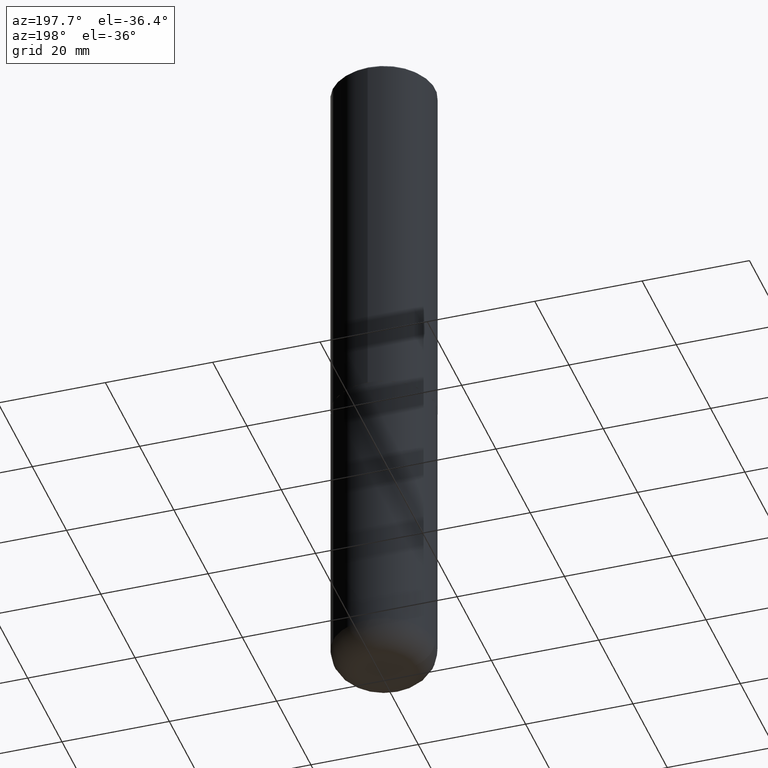
[diagram: clean part render]
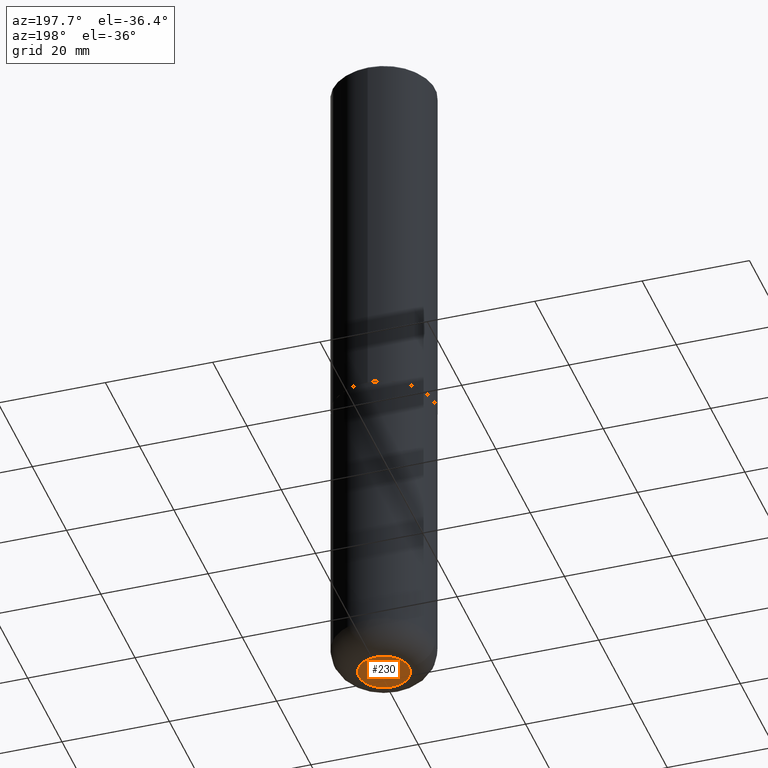
[diagram: same view with one face highlighted and labeled with its STEP entity id]
A machine part, auxiliary view. The second image highlights one B-rep face of the part: STEP entity #230.
In plain terms, the highlighted planar face has unit normal (0, -0, -1).
Its self-contained STEP definition (entity closure, byte-faithful):
#4 = CIRCLE ( 'NONE', #342, 0.1850000000000000810 ) ;
#31 = EDGE_LOOP ( 'NONE', ( #197, #61 ) ) ;
#35 = CARTESIAN_POINT ( 'NONE',  ( 1.222734403092568523E-28, -1.745740669421572989E-14, -5.000000000000000000 ) ) ;
#61 = ORIENTED_EDGE ( 'NONE', *, *, #100, .F. ) ;
#100 = EDGE_CURVE ( 'NONE', #293, #254, #129, .T. ) ;
#129 = CIRCLE ( 'NONE', #190, 0.1850000000000000810 ) ;
#147 = FACE_OUTER_BOUND ( 'NONE', #31, .T. ) ;
#153 = AXIS2_PLACEMENT_3D ( 'NONE', #213, #217, #249 ) ;
#165 = DIRECTION ( 'NONE',  ( -2.445468806185136597E-29, 3.491481338843145583E-15, 1.000000000000000000 ) ) ;
#190 = AXIS2_PLACEMENT_3D ( 'NONE', #299, #269, #398 ) ;
#197 = ORIENTED_EDGE ( 'NONE', *, *, #367, .F. ) ;
#213 = CARTESIAN_POINT ( 'NONE',  ( 1.222734403092568523E-28, -1.745740669421572989E-14, -5.000000000000000000 ) ) ;
#217 = DIRECTION ( 'NONE',  ( 2.438088387897960049E-29, -3.491481338843145188E-15, -1.000000000000000000 ) ) ;
#230 = ADVANCED_FACE ( 'NONE', ( #147 ), #310, .T. ) ;
#249 = DIRECTION ( 'NONE',  ( -1.000000000000000000, 6.982962677686265922E-15, -4.876176775795935793E-29 ) ) ;
#254 = VERTEX_POINT ( 'NONE', #400 ) ;
#269 = DIRECTION ( 'NONE',  ( -2.445468806185136597E-29, 3.491481338843145583E-15, 1.000000000000000000 ) ) ;
#293 = VERTEX_POINT ( 'NONE', #307 ) ;
#299 = CARTESIAN_POINT ( 'NONE',  ( 1.222734403092568523E-28, -1.745740669421572989E-14, -5.000000000000000000 ) ) ;
#307 = CARTESIAN_POINT ( 'NONE',  ( -0.1850000000000000810, -1.513619630689734772E-14, -5.000000000000000000 ) ) ;
#310 = PLANE ( 'NONE',  #153 ) ;
#326 = DIRECTION ( 'NONE',  ( 1.000000000000000000, -6.982962677686272233E-15, 0.000000000000000000 ) ) ;
#342 = AXIS2_PLACEMENT_3D ( 'NONE', #35, #165, #326 ) ;
#367 = EDGE_CURVE ( 'NONE', #254, #293, #4, .T. ) ;
#398 = DIRECTION ( 'NONE',  ( 1.000000000000000000, -6.982962677686272233E-15, 0.000000000000000000 ) ) ;
#400 = CARTESIAN_POINT ( 'NONE',  ( 0.1850000000000000810, -1.874925478958768986E-14, -5.000000000000000000 ) ) ;